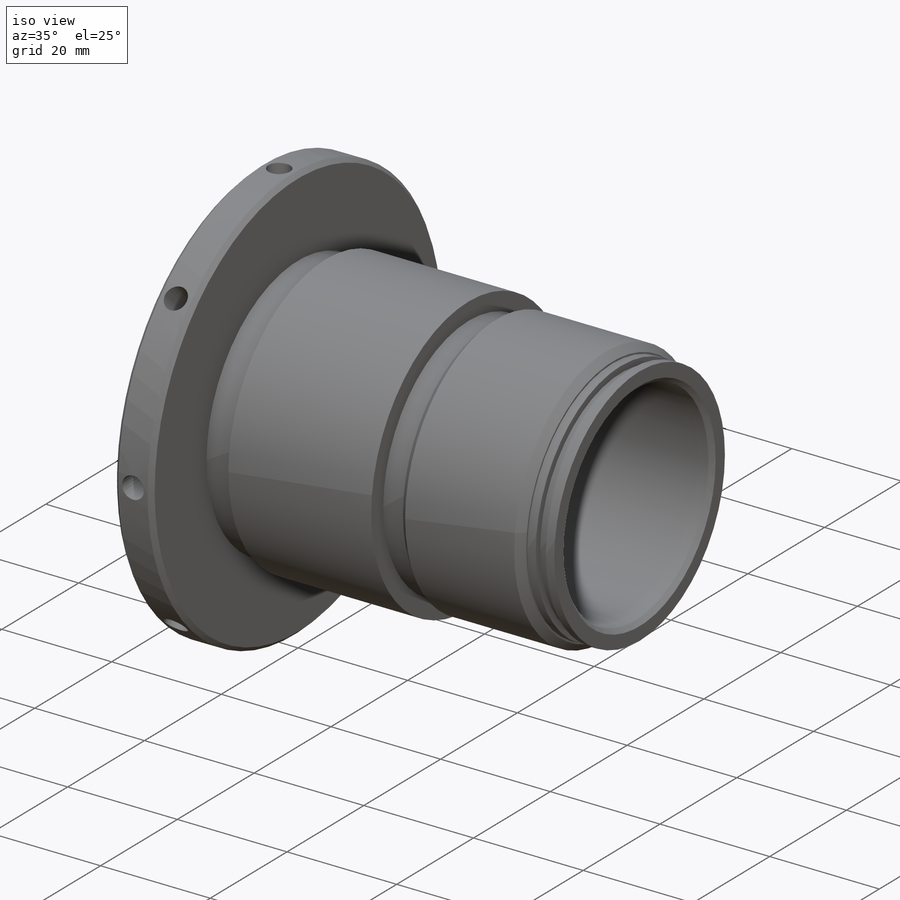
[diagram: iso view]
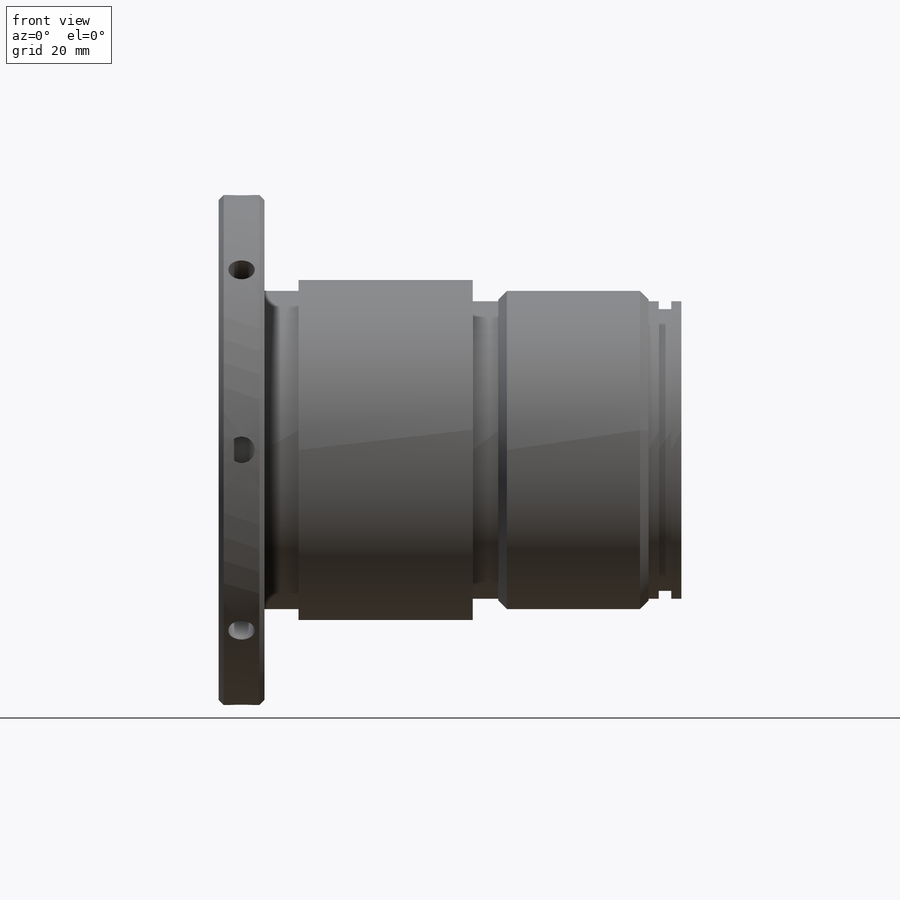
[diagram: front view]
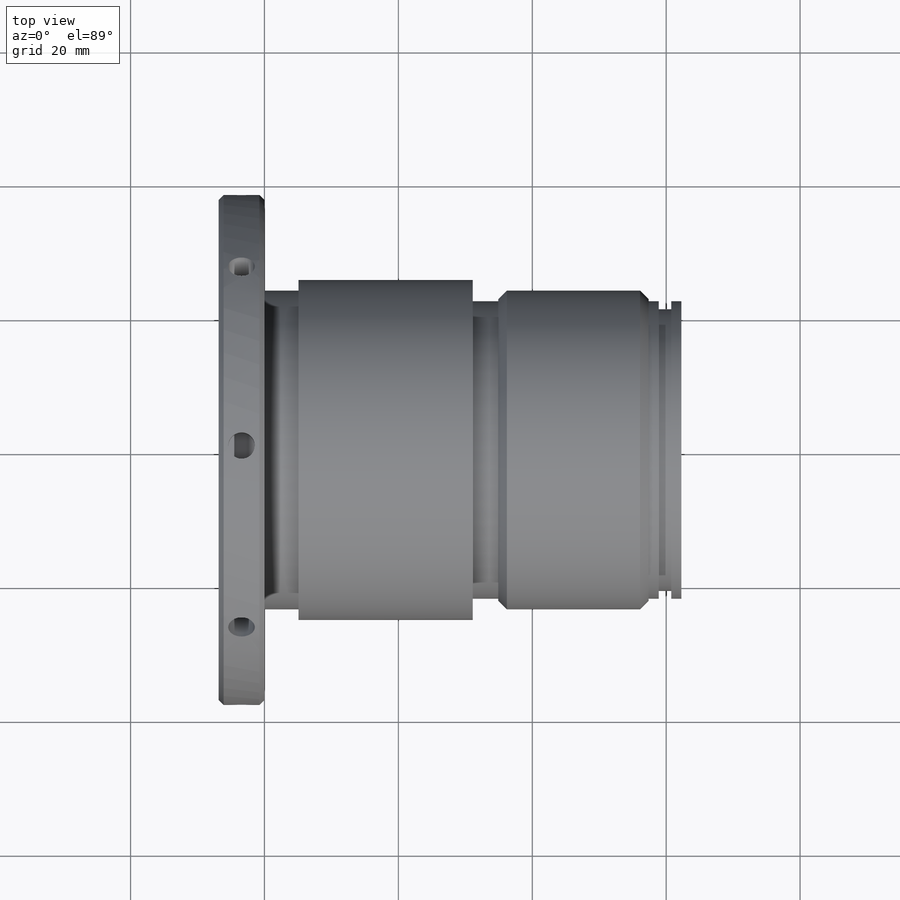
[diagram: top view]
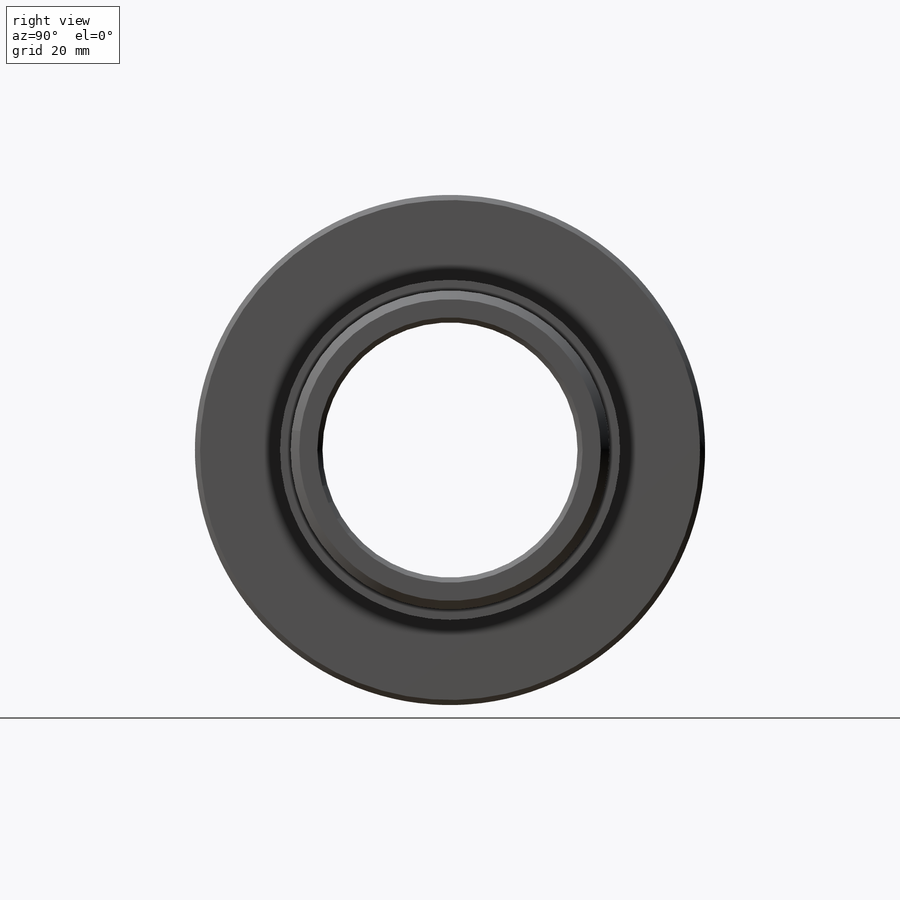
[diagram: right view]
SOLIDWORKS PART (.sldprt)
format: sldprt  version: not decoded by parser v0  size: 514,560 bytes
history: native  units: mm
features: sketch x6, plane x5, chamfer x3, revolve x2, cut_revolve x2, cut_extrude x2, material x1, thread x1, pattern_circular x1 (+11 scaffold rows collapsed)
feature tree (34):
  scaffold x11  (default folders/planes/origin — collapsed)
  material  "AISI 440C PER AMS 5630"
  plane  "XY"
  plane  "XZ"
  plane  "YZ"
  sketch  "Sketch1"  dims[c1.D2=1.524mm c1.D8=1.524mm c1.D12=1.524mm c1.D5=1.524mm c1.D1=38.1mm c2.D2=~8.212348mm c3.D2=45.0deg c3.D3=39.116mm c3.D4=12.7mm c3.D5=31.75mm c3.D6=12.7mm c3.D7=50.7873mm c3.D8=0.762mm c3.D9=12.7mm c3.D10=12.7mm c3.D11=25.4mm c3.D12=~105.493621mm c4.D9=3.81mm c4.D6=19.05mm c4.D10=41.4528mm c4.D11=19.05mm c4.D8=0.762mm c5.D9=19.05mm c5.D11=90.0deg c6.D11=28.575mm c6.D6=62.2808mm c6.D9=5.08mm c7.D11=13.208mm c7.D4=20.828mm c7.D5=~5.488053mm c7.D8=6.604mm c7.D12=6.604mm c8.D5=6.604mm c8.D12=6.604mm c9.D5=41.91mm c9.D2=3.048mm c10.D5=0.762mm c10.D8=~1.590678mm c11.D8=135.0deg c11.D13=~1.205945mm c12.D13=135.0deg c12.D4=19.304mm]
  revolve  "Revolve1"  Angle=360deg
  sketch  "Sketch2"  dims[c1.D3=1.524mm c1.D1=5.207mm c1.D2=47.625mm c1.D4=45.0596mm c1.D5=15.113mm c2.D3=44.45mm c2.D5=3.81mm c2.D6=42.1132mm c2.D7=1.524mm c2.D8=1.8542mm c2.D9=1.524mm c2.D10=44.45mm c3.D9=1.524mm]
  cut_revolve  "Cut-Revolve1"  [1 undecoded]
  thread  "Cosmetic Thread1"  Diameter=45.0596mm  [1 undecoded]
  plane  "Plane1"
  chamfer  "Chamfer1"  Distance=0.762mm Angle=45deg
  sketch  "Sketch3"  dims[D1=6.858mm D2=76.2mm D3=6.858mm]
  revolve  "Revolve2"  Angle=360deg
  sketch  "Sketch5"  dims[D1=5.08mm D2=47.625mm]
  cut_revolve  "Cut-Revolve2"  Angle=360deg
  chamfer  "Chamfer3"  Distance=0.762mm Angle=45deg
  plane  "Plane2"
  sketch  "Sketch6"  dims[D1=74.676mm]
  cut_extrude  "Cut-Extrude2"  Depth=6.35mm
  chamfer  "Chamfer4"  Distance=1.2827mm Angle=45deg ID=-1
  pattern_circular  "CirPattern2"  Count=8 Angle=45deg
  sketch  "Sketch7"
  cut_extrude  "Extrude1"  Depth=0.0254mm
decode coverage: 15 of 17 modeling features carry decoded parameters
note: ~ marks probable driven/reference dimensions
note: 2 parameter values undecoded
note: suppression state not decoded; provenance and decode notes live in map.json
